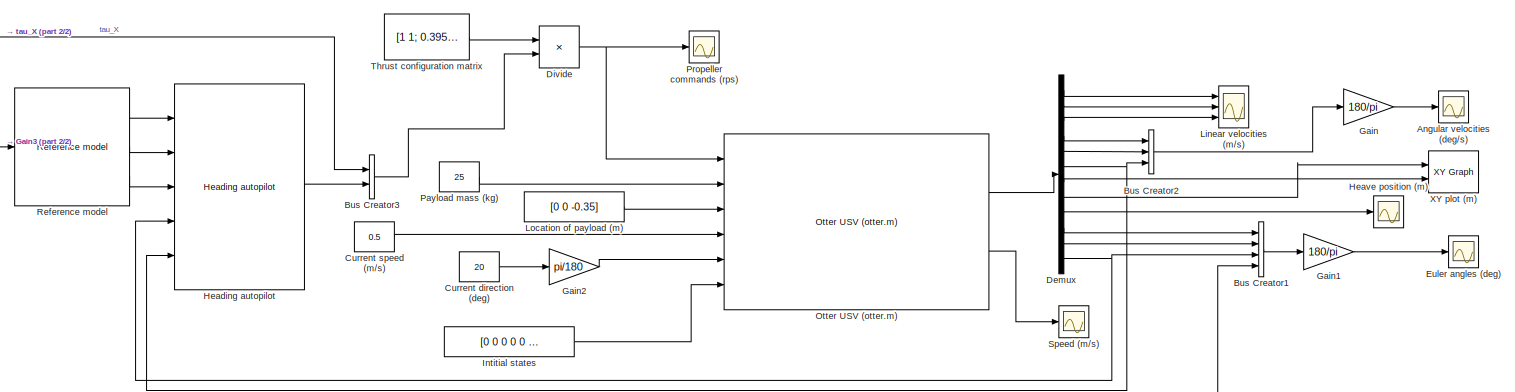
[diagram: root canvas - part 1/2, most of the canvas]
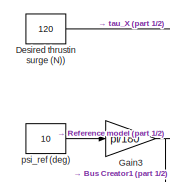
[diagram: root canvas - part 2/2, top left region]
MODEL slx_7f8a14f30cf0
KIND model
CONFIG AbsTol = auto
CONFIG EnableMultiTasking = off
CONFIG FixedStep = 0.05
CONFIG MaxStep = auto
CONFIG MinStep = auto
CONFIG RelTol = 1e-3
CONFIG SampleTimeConstraint = Unconstrained
CONFIG SolverName = ode4
CONFIG StartTime = 0.0
CONFIG StopTime = 50
BLOCK [Scope] Angular velocities (deg//s)
  Floating = off
  NumInputPorts = 1
  Ports = [1]
  ScopeSpecificationString = Simulink.scopes.TimeScopeBlockCfg('CurrentConfiguration', extmgr.ConfigurationSet(extmgr.Configuration('Core','General UI',true),extmgr.Configuration('Core','Source UI',true),extmgr.Configuration('Sources','WiredSimulink',true,'DataLoggingVariableName','ScopeData3'),extmgr.Configuration('Visuals','Time Domain',true,'SerializedDisplays',{struct('MinYLimReal','-4.70367','MaxYLimReal','4.06163','YLab...<+1428ch>
BLOCK [BusCreator] Bus Creator1
  DisplayOption = bar
  InheritFromInputs = on
  Inputs = 4
  Ports = [4, 1]
BLOCK [BusCreator] Bus Creator2
  DisplayOption = bar
  InheritFromInputs = on
  Inputs = 3
  Ports = [3, 1]
BLOCK [BusCreator] Bus Creator3
  DisplayOption = bar
  InheritFromInputs = on
  Inputs = 2
  Ports = [2, 1]
BLOCK [Constant] Current direction (deg)
  Value = 20
BLOCK [Constant] Current speed (m//s)
  Value = 0.5
BLOCK [Demux] Demux
  Outputs = 12
  Ports = [1, 12]
BLOCK [Constant] Desired thrustin surge (N))
  Value = 120
BLOCK [Product] Divide
  Inputs = /*
  Multiplication = Matrix(*)
  Ports = [2, 1]
BLOCK [Scope] Euler angles (deg)
  Floating = off
  NumInputPorts = 1
  Ports = [1]
  ScopeSpecificationString = Simulink.scopes.TimeScopeBlockCfg('CurrentConfiguration', extmgr.ConfigurationSet(extmgr.Configuration('Core','General UI',true),extmgr.Configuration('Core','Source UI',true),extmgr.Configuration('Sources','WiredSimulink',true,'DataLoggingVariableName','ScopeData1'),extmgr.Configuration('Visuals','Time Domain',true,'SerializedDisplays',{struct('MinYLimReal','-10.71205','MaxYLimReal','12.30134','YL...<+1575ch>
BLOCK [Gain] Gain
  Gain = 180/pi
BLOCK [Gain] Gain1
  Gain = 180/pi
BLOCK [Gain] Gain2
  Gain = pi/180
BLOCK [Gain] Gain3
  Gain = pi/180
BLOCK [Reference] Heading autopilot   REF=mssSimulink/Control/Autopilots/Heading autopilot
  Ports = [5, 1]
  SourceBlock = mssSimulink/Control/Autopilots/Heading autopilot
  SourceType = Course Autopilot
BLOCK [Scope] Heave position (m)
  Floating = off
  NumInputPorts = 1
  Ports = [1]
  ScopeSpecificationString = Simulink.scopes.TimeScopeBlockCfg('CurrentConfiguration', extmgr.ConfigurationSet(extmgr.Configuration('Core','General UI',true),extmgr.Configuration('Core','Source UI',true),extmgr.Configuration('Sources','WiredSimulink',true,'DataLoggingVariableName','ScopeData4'),extmgr.Configuration('Visuals','Time Domain',true,'SerializedDisplays',{struct('MinYLimReal','-0.008','MaxYLimReal','0.0581','YLabelR...<+1503ch>
BLOCK [Constant] Intitial states
  Value = [0 0 0 0 0 0 0 0 0 0 0 0]
BLOCK [Scope] Linear velocities (m//s)
  Floating = off
  NumInputPorts = 3
  Ports = [3]
  ScopeSpecificationString = Simulink.scopes.TimeScopeBlockCfg('CurrentConfiguration', extmgr.ConfigurationSet(extmgr.Configuration('Core','General UI',true),extmgr.Configuration('Core','Source UI',true),extmgr.Configuration('Sources','WiredSimulink',true,'DataLoggingVariableName','ScopeData2'),extmgr.Configuration('Visuals','Time Domain',true,'SerializedDisplays',{struct('MinYLimReal','-0.44604','MaxYLimReal','1.75118','YLab...<+1801ch>
BLOCK [Constant] Location of payload (m)
  Value = [0 0 -0.35]
BLOCK [Reference] Otter USV (otter.m)   REF=mssSimulink/Marine craft models/Otter USV (otter.m)
  Ports = [6, 2]
  SourceBlock = mssSimulink/Marine craft models/Otter USV (otter.m)
BLOCK [Constant] Payload mass (kg)
  Value = 25
BLOCK [Scope] Propeller commands (rps)
  Floating = off
  NumInputPorts = 1
  Ports = [1]
  ScopeSpecificationString = Simulink.scopes.TimeScopeBlockCfg('CurrentConfiguration', extmgr.ConfigurationSet(extmgr.Configuration('Core','General UI',true),extmgr.Configuration('Core','Source UI',true),extmgr.Configuration('Sources','WiredSimulink',true,'DataLoggingVariableName','ScopeData1'),extmgr.Configuration('Visuals','Time Domain',true,'SerializedDisplays',{struct('MinYLimReal','50.55968','MaxYLimReal','69.44032','YLa...<+1439ch>
BLOCK [Reference] Reference model  REF=mssSimulink/Guidance/Reference model
  Ports = [1, 3]
  SourceBlock = mssSimulink/Guidance/Reference model
  SourceType = 3rd-order reference model
BLOCK [Scope] Speed (m//s)
  Floating = off
  NumInputPorts = 1
  Ports = [1]
  ScopeSpecificationString = Simulink.scopes.TimeScopeBlockCfg('CurrentConfiguration', extmgr.ConfigurationSet(extmgr.Configuration('Core','General UI',true),extmgr.Configuration('Core','Source UI',true),extmgr.Configuration('Sources','WiredSimulink',true),extmgr.Configuration('Visuals','Time Domain',true,'SerializedDisplays',{struct('MinYLimReal','-0.19165','MaxYLimReal','1.72485','YLabelReal','','MinYLimMag','0.00000','MaxY...<+1368ch>
BLOCK [Constant] Thrust configuration matrix
  Value = [1 1; 0.395 -0.395]
BLOCK [Reference] XY plot (m)  REF=simulink/Sinks/XY Graph
  Ports = [2]
  SourceBlock = simulink/Sinks/XY Graph
  SourceProductBaseCode = SL
  SourceType = XY scope.
BLOCK [Constant] psi_ref (deg)
  Value = 10
LINE Bus Creator1:1 -> Gain1:1
LINE Bus Creator2:1 -> Gain:1
LINE Bus Creator3:1 -> Divide:2
LINE Current direction (deg):1 -> Gain2:1
LINE Current speed (m//s):1 -> Otter USV (otter.m) :4
LINE Demux:1 -> Linear velocities (m//s):1
LINE Demux:10 -> Bus Creator1:1
LINE Demux:11 -> Bus Creator1:2
NET Demux:12 -> Bus Creator1:3, Heading autopilot :4
LINE Demux:2 -> Linear velocities (m//s):2
LINE Demux:3 -> Linear velocities (m//s):3
LINE Demux:4 -> Bus Creator2:1
LINE Demux:5 -> Bus Creator2:2
NET Demux:6 -> Bus Creator2:3, Heading autopilot :5
LINE Demux:7 -> XY plot (m):2
LINE Demux:8 -> XY plot (m):1
LINE Demux:9 -> Heave position (m):1
LINE Desired thrustin surge (N)):1 -> Bus Creator3:1
NET Divide:1 -> Otter USV (otter.m) :1, Propeller commands (rps):1
LINE Gain1:1 -> Euler angles (deg):1
LINE Gain2:1 -> Otter USV (otter.m) :5
NET Gain3:1 -> Bus Creator1:4, Reference model:1
LINE Gain:1 -> Angular velocities (deg//s):1
LINE Heading autopilot :1 -> Bus Creator3:2
LINE Intitial states:1 -> Otter USV (otter.m) :6
LINE Location of payload (m):1 -> Otter USV (otter.m) :3
LINE Otter USV (otter.m) :1 -> Demux:1
LINE Otter USV (otter.m) :2 -> Speed (m//s):1
LINE Payload mass (kg):1 -> Otter USV (otter.m) :2
LINE Reference model:1 -> Heading autopilot :1
LINE Reference model:2 -> Heading autopilot :2
LINE Reference model:3 -> Heading autopilot :3
LINE Thrust configuration matrix:1 -> Divide:1
LINE psi_ref (deg):1 -> Gain3:1
note: NET lines group one-source signal fan-out (src -> all destinations, sorted); 1:1 wires keep LINE
